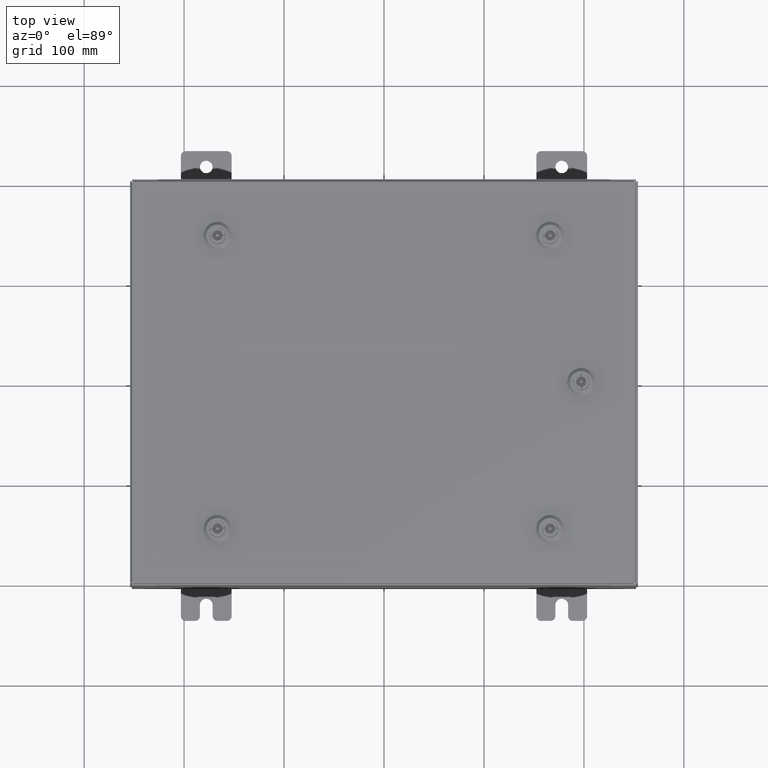
[diagram: clean part render]
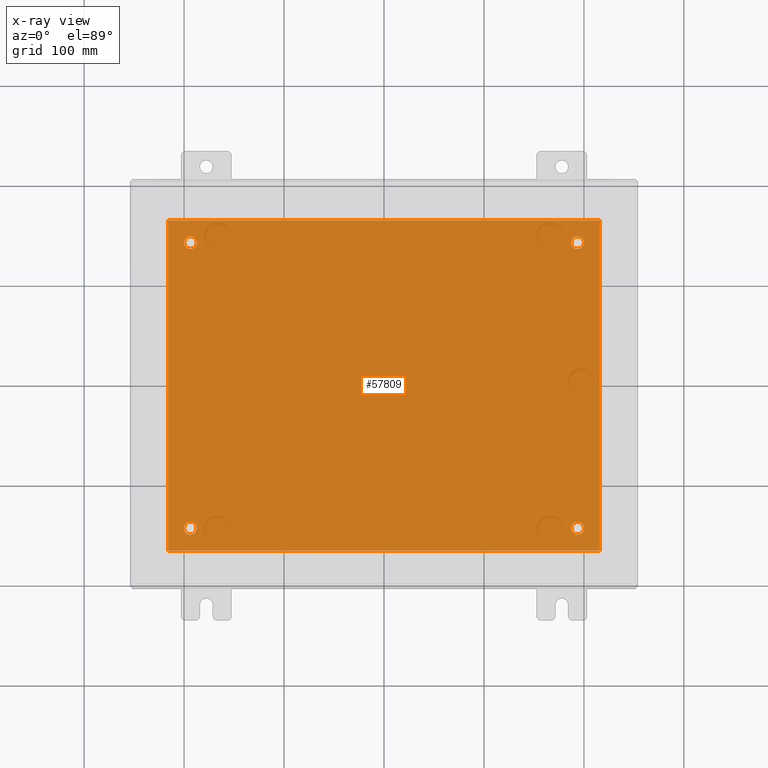
[diagram: x-ray — body ghosted, one internal face saturated and labeled with its STEP entity id]
A machine part, top view, then the same camera in x-ray: the body is ghosted and one INTERNAL B-rep face — a face not visible from any outside direction — is saturated and labeled: STEP entity #57809.
In plain terms, the highlighted planar face has unit normal (0, 0, -1).
Its self-contained STEP definition (entity closure, byte-faithful):
#940 = EDGE_LOOP ( 'NONE', ( #19568, #62186 ) ) ;
#1068 = PLANE ( 'NONE',  #19331 ) ;
#1544 = CARTESIAN_POINT ( 'NONE',  ( 7.874999999999998200, -5.625000000000000000, -0.1039999999999999800 ) ) ;
#2155 = DIRECTION ( 'NONE',  ( -1.000000000000000000, 0.0000000000000000000, -0.0000000000000000000 ) ) ;
#4234 = DIRECTION ( 'NONE',  ( -1.000000000000000000, 0.0000000000000000000, 0.0000000000000000000 ) ) ;
#4236 = EDGE_CURVE ( 'NONE', #45483, #53481, #14167, .T. ) ;
#4321 = DIRECTION ( 'NONE',  ( -1.000000000000000000, 0.0000000000000000000, 0.0000000000000000000 ) ) ;
#4921 = EDGE_CURVE ( 'NONE', #54530, #13125, #23247, .T. ) ;
#5700 = VERTEX_POINT ( 'NONE', #37165 ) ;
#6236 = DIRECTION ( 'NONE',  ( -0.0000000000000000000, -0.0000000000000000000, 1.000000000000000000 ) ) ;
#6664 = EDGE_LOOP ( 'NONE', ( #51602, #21881 ) ) ;
#6731 = ORIENTED_EDGE ( 'NONE', *, *, #8307, .T. ) ;
#7299 = EDGE_CURVE ( 'NONE', #53481, #53237, #61077, .T. ) ;
#7389 = DIRECTION ( 'NONE',  ( -1.000000000000000000, -0.0000000000000000000, -0.0000000000000000000 ) ) ;
#7539 = DIRECTION ( 'NONE',  ( 0.0000000000000000000, 1.000000000000000000, 0.0000000000000000000 ) ) ;
#7633 = AXIS2_PLACEMENT_3D ( 'NONE', #62468, #33384, #4234 ) ;
#8307 = EDGE_CURVE ( 'NONE', #42345, #48288, #50484, .T. ) ;
#8575 = CARTESIAN_POINT ( 'NONE',  ( -8.499999999999996400, -6.500000000000000000, -0.1039999999999999800 ) ) ;
#9420 = DIRECTION ( 'NONE',  ( -0.0000000000000000000, -1.000000000000000000, -0.0000000000000000000 ) ) ;
#10848 = DIRECTION ( 'NONE',  ( -0.0000000000000000000, -0.0000000000000000000, 1.000000000000000000 ) ) ;
#11009 = EDGE_CURVE ( 'NONE', #24743, #5700, #20683, .T. ) ;
#11886 = CARTESIAN_POINT ( 'NONE',  ( -7.874999999999999100, -5.625000000000000000, -0.1039999999999999800 ) ) ;
#12181 = CARTESIAN_POINT ( 'NONE',  ( -8.499999999999996400, -6.500000000000000000, -0.1039999999999999800 ) ) ;
#12541 = ORIENTED_EDGE ( 'NONE', *, *, #49886, .F. ) ;
#12939 = ORIENTED_EDGE ( 'NONE', *, *, #7299, .F. ) ;
#13125 = VERTEX_POINT ( 'NONE', #11886 ) ;
#13391 = CARTESIAN_POINT ( 'NONE',  ( -8.499999999999996400, -6.500000000000000000, -0.1039999999999999800 ) ) ;
#14167 = LINE ( 'NONE', #13391, #52939 ) ;
#14983 = EDGE_LOOP ( 'NONE', ( #6731, #37504 ) ) ;
#16975 = CARTESIAN_POINT ( 'NONE',  ( -8.499999999999996400, 6.500000000000000000, -0.1039999999999999800 ) ) ;
#17352 = CARTESIAN_POINT ( 'NONE',  ( 8.500000000000003600, -6.500000000000000000, -0.1039999999999999800 ) ) ;
#18528 = DIRECTION ( 'NONE',  ( -0.0000000000000000000, -0.0000000000000000000, 1.000000000000000000 ) ) ;
#19064 = AXIS2_PLACEMENT_3D ( 'NONE', #62554, #33470, #4321 ) ;
#19283 = CARTESIAN_POINT ( 'NONE',  ( 7.625000000000000000, -5.625000000000000000, -0.1039999999999999800 ) ) ;
#19331 = AXIS2_PLACEMENT_3D ( 'NONE', #21544, #31297, #2155 ) ;
#19568 = ORIENTED_EDGE ( 'NONE', *, *, #4921, .T. ) ;
#20150 = CARTESIAN_POINT ( 'NONE',  ( 8.500000000000003600, -6.500000000000000000, -0.1039999999999999800 ) ) ;
#20506 = AXIS2_PLACEMENT_3D ( 'NONE', #35352, #6236, #40281 ) ;
#20683 = CIRCLE ( 'NONE', #42954, 0.2499999999999987000 ) ;
#21384 = ORIENTED_EDGE ( 'NONE', *, *, #48703, .T. ) ;
#21544 = CARTESIAN_POINT ( 'NONE',  ( 0.0000000000000000000, 0.0000000000000000000, -0.1039999999999999800 ) ) ;
#21881 = ORIENTED_EDGE ( 'NONE', *, *, #28889, .T. ) ;
#22423 = EDGE_CURVE ( 'NONE', #13125, #54530, #35695, .T. ) ;
#22602 = DIRECTION ( 'NONE',  ( -0.0000000000000000000, -0.0000000000000000000, 1.000000000000000000 ) ) ;
#23247 = CIRCLE ( 'NONE', #28523, 0.2499999999999998100 ) ;
#23958 = DIRECTION ( 'NONE',  ( -0.0000000000000000000, -0.0000000000000000000, 1.000000000000000000 ) ) ;
#24055 = FACE_BOUND ( 'NONE', #34239, .T. ) ;
#24165 = DIRECTION ( 'NONE',  ( -1.000000000000000000, 0.0000000000000000000, 0.0000000000000000000 ) ) ;
#24743 = VERTEX_POINT ( 'NONE', #60931 ) ;
#25964 = VERTEX_POINT ( 'NONE', #16975 ) ;
#27427 = AXIS2_PLACEMENT_3D ( 'NONE', #19283, #53266, #24165 ) ;
#27607 = VECTOR ( 'NONE', #9420, 39.37007874015748100 ) ;
#28523 = AXIS2_PLACEMENT_3D ( 'NONE', #51718, #22602, #56575 ) ;
#28889 = EDGE_CURVE ( 'NONE', #58980, #52635, #34162, .T. ) ;
#30457 = CIRCLE ( 'NONE', #19064, 0.2499999999999987000 ) ;
#31297 = DIRECTION ( 'NONE',  ( 0.0000000000000000000, 0.0000000000000000000, -1.000000000000000000 ) ) ;
#31895 = CARTESIAN_POINT ( 'NONE',  ( 7.375000000000000900, -5.625000000000000000, -0.1039999999999999800 ) ) ;
#31996 = EDGE_LOOP ( 'NONE', ( #12939, #47944, #44963, #12541 ) ) ;
#33384 = DIRECTION ( 'NONE',  ( -0.0000000000000000000, -0.0000000000000000000, 1.000000000000000000 ) ) ;
#33470 = DIRECTION ( 'NONE',  ( -0.0000000000000000000, -0.0000000000000000000, 1.000000000000000000 ) ) ;
#33635 = AXIS2_PLACEMENT_3D ( 'NONE', #39945, #10848, #44827 ) ;
#33890 = AXIS2_PLACEMENT_3D ( 'NONE', #47627, #18528, #52527 ) ;
#34162 = CIRCLE ( 'NONE', #7633, 0.2499999999999998100 ) ;
#34239 = EDGE_LOOP ( 'NONE', ( #21384, #35252 ) ) ;
#34475 = EDGE_CURVE ( 'NONE', #48288, #42345, #51321, .T. ) ;
#35252 = ORIENTED_EDGE ( 'NONE', *, *, #11009, .T. ) ;
#35352 = CARTESIAN_POINT ( 'NONE',  ( -7.625000000000000000, -5.625000000000000000, -0.1039999999999999800 ) ) ;
#35406 = FACE_OUTER_BOUND ( 'NONE', #31996, .T. ) ;
#35695 = CIRCLE ( 'NONE', #20506, 0.2499999999999998100 ) ;
#36070 = VECTOR ( 'NONE', #7539, 39.37007874015748100 ) ;
#37165 = CARTESIAN_POINT ( 'NONE',  ( 7.874999999999998200, 5.625000000000000000, -0.1039999999999999800 ) ) ;
#37504 = ORIENTED_EDGE ( 'NONE', *, *, #34475, .T. ) ;
#39014 = EDGE_CURVE ( 'NONE', #52635, #58980, #47227, .T. ) ;
#39749 = CARTESIAN_POINT ( 'NONE',  ( -7.375000000000000000, 5.625000000000000000, -0.1039999999999999800 ) ) ;
#39945 = CARTESIAN_POINT ( 'NONE',  ( -7.625000000000000000, 5.625000000000000000, -0.1039999999999999800 ) ) ;
#40281 = DIRECTION ( 'NONE',  ( -1.000000000000000000, 0.0000000000000000000, 0.0000000000000000000 ) ) ;
#40557 = CARTESIAN_POINT ( 'NONE',  ( -8.499999999999996400, 6.500000000000000000, -0.1039999999999999800 ) ) ;
#42055 = LINE ( 'NONE', #8575, #27607 ) ;
#42345 = VERTEX_POINT ( 'NONE', #1544 ) ;
#42929 = CARTESIAN_POINT ( 'NONE',  ( 8.500000000000003600, 6.500000000000000000, -0.1039999999999999800 ) ) ;
#42954 = AXIS2_PLACEMENT_3D ( 'NONE', #53073, #23958, #57962 ) ;
#44827 = DIRECTION ( 'NONE',  ( -1.000000000000000000, 0.0000000000000000000, 0.0000000000000000000 ) ) ;
#44963 = ORIENTED_EDGE ( 'NONE', *, *, #62320, .F. ) ;
#45483 = VERTEX_POINT ( 'NONE', #12181 ) ;
#47227 = CIRCLE ( 'NONE', #33635, 0.2499999999999998100 ) ;
#47627 = CARTESIAN_POINT ( 'NONE',  ( 7.625000000000000000, -5.625000000000000000, -0.1039999999999999800 ) ) ;
#47944 = ORIENTED_EDGE ( 'NONE', *, *, #4236, .F. ) ;
#48288 = VERTEX_POINT ( 'NONE', #31895 ) ;
#48384 = FACE_BOUND ( 'NONE', #940, .T. ) ;
#48661 = VECTOR ( 'NONE', #7389, 39.37007874015748100 ) ;
#48703 = EDGE_CURVE ( 'NONE', #5700, #24743, #30457, .T. ) ;
#49868 = FACE_BOUND ( 'NONE', #14983, .T. ) ;
#49886 = EDGE_CURVE ( 'NONE', #53237, #25964, #61556, .T. ) ;
#50484 = CIRCLE ( 'NONE', #33890, 0.2499999999999987000 ) ;
#51321 = CIRCLE ( 'NONE', #27427, 0.2499999999999987000 ) ;
#51602 = ORIENTED_EDGE ( 'NONE', *, *, #39014, .T. ) ;
#51718 = CARTESIAN_POINT ( 'NONE',  ( -7.625000000000000000, -5.625000000000000000, -0.1039999999999999800 ) ) ;
#52527 = DIRECTION ( 'NONE',  ( -1.000000000000000000, 0.0000000000000000000, 0.0000000000000000000 ) ) ;
#52635 = VERTEX_POINT ( 'NONE', #39749 ) ;
#52939 = VECTOR ( 'NONE', #61799, 39.37007874015748100 ) ;
#53073 = CARTESIAN_POINT ( 'NONE',  ( 7.625000000000000000, 5.625000000000000000, -0.1039999999999999800 ) ) ;
#53237 = VERTEX_POINT ( 'NONE', #42929 ) ;
#53266 = DIRECTION ( 'NONE',  ( -0.0000000000000000000, -0.0000000000000000000, 1.000000000000000000 ) ) ;
#53481 = VERTEX_POINT ( 'NONE', #20150 ) ;
#53926 = CARTESIAN_POINT ( 'NONE',  ( -7.874999999999999100, 5.625000000000000000, -0.1039999999999999800 ) ) ;
#54530 = VERTEX_POINT ( 'NONE', #62844 ) ;
#56575 = DIRECTION ( 'NONE',  ( -1.000000000000000000, 0.0000000000000000000, 0.0000000000000000000 ) ) ;
#57809 = ADVANCED_FACE ( 'NONE', ( #48384, #49868, #24055, #61284, #35406 ), #1068, .T. ) ;
#57962 = DIRECTION ( 'NONE',  ( -1.000000000000000000, 0.0000000000000000000, 0.0000000000000000000 ) ) ;
#58980 = VERTEX_POINT ( 'NONE', #53926 ) ;
#60931 = CARTESIAN_POINT ( 'NONE',  ( 7.375000000000000900, 5.625000000000000000, -0.1039999999999999800 ) ) ;
#61077 = LINE ( 'NONE', #17352, #36070 ) ;
#61284 = FACE_BOUND ( 'NONE', #6664, .T. ) ;
#61556 = LINE ( 'NONE', #40557, #48661 ) ;
#61799 = DIRECTION ( 'NONE',  ( 1.000000000000000000, 0.0000000000000000000, 0.0000000000000000000 ) ) ;
#62186 = ORIENTED_EDGE ( 'NONE', *, *, #22423, .T. ) ;
#62320 = EDGE_CURVE ( 'NONE', #25964, #45483, #42055, .T. ) ;
#62468 = CARTESIAN_POINT ( 'NONE',  ( -7.625000000000000000, 5.625000000000000000, -0.1039999999999999800 ) ) ;
#62554 = CARTESIAN_POINT ( 'NONE',  ( 7.625000000000000000, 5.625000000000000000, -0.1039999999999999800 ) ) ;
#62844 = CARTESIAN_POINT ( 'NONE',  ( -7.375000000000000000, -5.625000000000000000, -0.1039999999999999800 ) ) ;